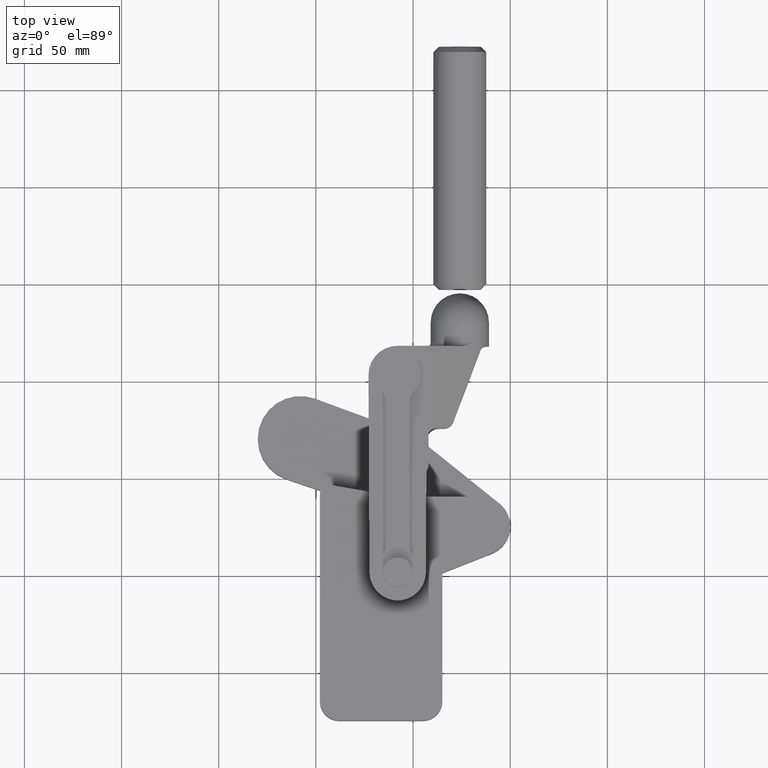
[diagram: clean part render]
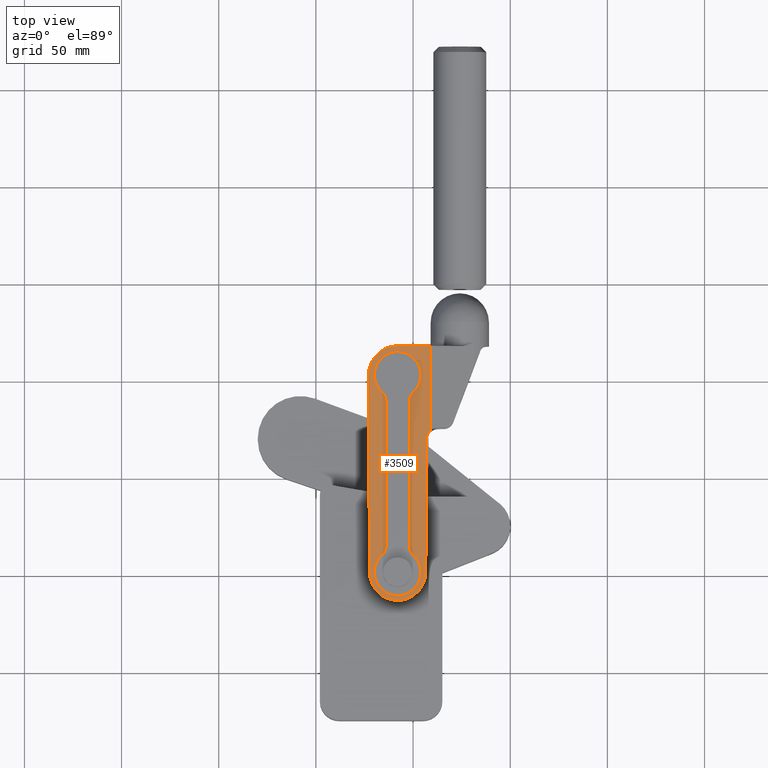
[diagram: same view with one face highlighted and labeled with its STEP entity id]
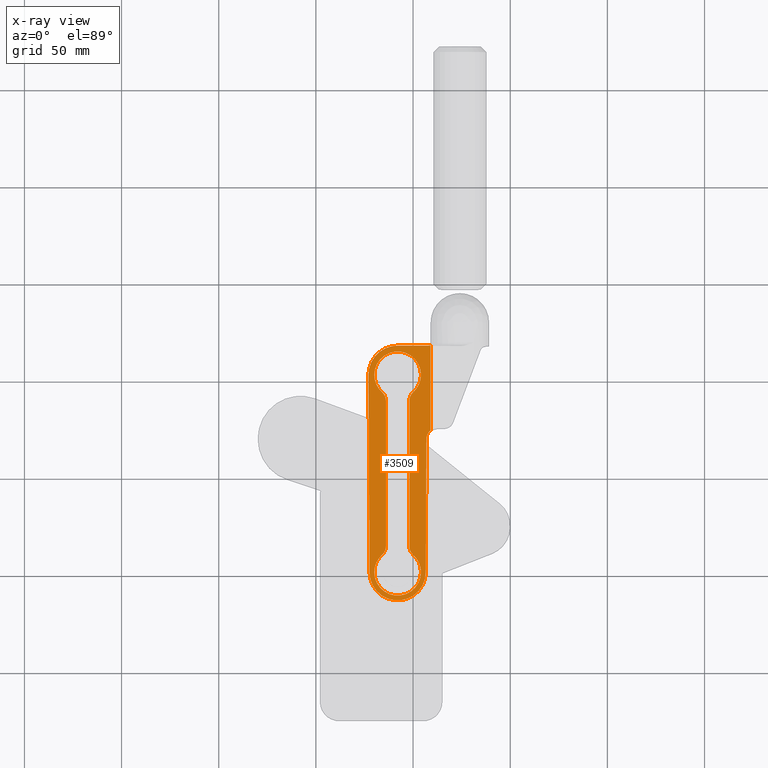
[diagram: x-ray of the same camera — body ghosted, the highlighted face saturated]
A machine part, top view. The second image highlights one B-rep face of the part: STEP entity #3509.
The next image is the same camera in x-ray: the body ghosted, the highlighted face saturated — about 0% of this face is hidden behind the body in this view.
In plain terms, the highlighted planar face has unit normal (-0, 0, 1).
Its self-contained STEP definition (entity closure, byte-faithful):
#85 = DIRECTION ( 'NONE',  ( 1.000000000000000000, 0.0000000000000000000, 0.0000000000000000000 ) ) ;
#99 = CARTESIAN_POINT ( 'NONE',  ( -149.9537911822583300, 59.89486728285307000, 24.90758373517278600 ) ) ;
#142 = LINE ( 'NONE', #1182, #282 ) ;
#207 = DIRECTION ( 'NONE',  ( 1.000000000000000000, 0.0000000000000000000, 0.0000000000000000000 ) ) ;
#233 = DIRECTION ( 'NONE',  ( -3.582142122470279100E-022, 3.234600765087460500E-022, 1.000000000000000000 ) ) ;
#282 = VECTOR ( 'NONE', #5583, 1000.000000000000200 ) ;
#292 = DIRECTION ( 'NONE',  ( 3.582142122470279100E-022, -3.234600765087460500E-022, -1.000000000000000000 ) ) ;
#343 = AXIS2_PLACEMENT_3D ( 'NONE', #1177, #4242, #1600 ) ;
#348 = EDGE_CURVE ( 'NONE', #3696, #1319, #2980, .T. ) ;
#350 = VERTEX_POINT ( 'NONE', #4590 ) ;
#359 = CARTESIAN_POINT ( 'NONE',  ( -157.9537911822583300, 50.95059537285391100, 24.90758373517278600 ) ) ;
#383 = DIRECTION ( 'NONE',  ( 3.582142122470279100E-022, -3.234600765087460500E-022, -1.000000000000000000 ) ) ;
#441 = DIRECTION ( 'NONE',  ( 0.004921259842521636500, 0.9999878905274614000, -3.216932943600802900E-022 ) ) ;
#487 = CIRCLE ( 'NONE', #3983, 5.999999999999950300 ) ;
#488 = DIRECTION ( 'NONE',  ( -3.582142122470279100E-022, 3.234600765087460500E-022, 1.000000000000000000 ) ) ;
#491 = EDGE_CURVE ( 'NONE', #1140, #2079, #2283, .T. ) ;
#529 = CIRCLE ( 'NONE', #3239, 14.99999999999957000 ) ;
#568 = CARTESIAN_POINT ( 'NONE',  ( -172.9536095401702500, 152.4767764752161600, 24.90758373517278600 ) ) ;
#587 = DIRECTION ( 'NONE',  ( 2.775557561562890700E-017, -1.000000000000000000, 3.234600765087459100E-022 ) ) ;
#637 = CARTESIAN_POINT ( 'NONE',  ( -157.9537911822583300, 50.95059537285391100, 24.90758373517278600 ) ) ;
#653 = CIRCLE ( 'NONE', #4520, 5.999999999999977800 ) ;
#664 = AXIS2_PLACEMENT_3D ( 'NONE', #4630, #5597, #1428 ) ;
#674 = AXIS2_PLACEMENT_3D ( 'NONE', #637, #3256, #207 ) ;
#676 = LINE ( 'NONE', #3437, #1694 ) ;
#684 = LINE ( 'NONE', #3645, #5076 ) ;
#723 = VERTEX_POINT ( 'NONE', #4704 ) ;
#758 = EDGE_CURVE ( 'NONE', #723, #5026, #4420, .T. ) ;
#791 = DIRECTION ( 'NONE',  ( 1.000000000000000000, 0.0000000000000000000, 0.0000000000000000000 ) ) ;
#834 = DIRECTION ( 'NONE',  ( 3.582142122470279100E-022, -3.234600765087460500E-022, -1.000000000000000000 ) ) ;
#852 = DIRECTION ( 'NONE',  ( 3.582142122470279100E-022, -3.234600765087460500E-022, -1.000000000000000000 ) ) ;
#894 = EDGE_CURVE ( 'NONE', #2380, #2794, #676, .T. ) ;
#912 = AXIS2_PLACEMENT_3D ( 'NONE', #359, #3413, #791 ) ;
#943 = DIRECTION ( 'NONE',  ( -3.582142122470279100E-022, 3.234600765087460500E-022, 1.000000000000000000 ) ) ;
#957 = CIRCLE ( 'NONE', #1808, 12.00000000000067700 ) ;
#1030 = VECTOR ( 'NONE', #5113, 1000.000000000000000 ) ;
#1140 = VERTEX_POINT ( 'NONE', #4535 ) ;
#1172 = CARTESIAN_POINT ( 'NONE',  ( -157.9537911822583300, 152.5505953728548400, 24.90758373517278600 ) ) ;
#1177 = CARTESIAN_POINT ( 'NONE',  ( -157.9537911822583300, 50.95059537285391100, 24.90758373517278600 ) ) ;
#1182 = CARTESIAN_POINT ( 'NONE',  ( -172.4536155949065200, 50.87923710513741300, 24.90758373517278600 ) ) ;
#1244 = EDGE_CURVE ( 'NONE', #2079, #5122, #2927, .T. ) ;
#1319 = VERTEX_POINT ( 'NONE', #3230 ) ;
#1372 = CARTESIAN_POINT ( 'NONE',  ( -151.9537911822583300, 139.1341875078551900, 24.90758373517278600 ) ) ;
#1375 = CARTESIAN_POINT ( 'NONE',  ( -157.9537911822583300, 152.5505953728548400, 24.90758373517278600 ) ) ;
#1379 = CARTESIAN_POINT ( 'NONE',  ( -151.9537911822583300, 64.36700323785265700, 24.90758373517278600 ) ) ;
#1382 = ORIENTED_EDGE ( 'NONE', *, *, #2121, .F. ) ;
#1411 = DIRECTION ( 'NONE',  ( 1.000000000000000000, 0.0000000000000000000, 0.0000000000000000000 ) ) ;
#1428 = DIRECTION ( 'NONE',  ( 1.000000000000000000, 0.0000000000000000000, 0.0000000000000000000 ) ) ;
#1470 = ORIENTED_EDGE ( 'NONE', *, *, #2869, .F. ) ;
#1528 = ORIENTED_EDGE ( 'NONE', *, *, #348, .T. ) ;
#1586 = CARTESIAN_POINT ( 'NONE',  ( -143.1163598967882800, 119.4801229319091500, 24.90758373517278600 ) ) ;
#1600 = DIRECTION ( 'NONE',  ( 1.000000000000000000, 0.0000000000000000000, 0.0000000000000000000 ) ) ;
#1617 = CARTESIAN_POINT ( 'NONE',  ( -163.9537911822583300, 64.36700323785265700, 24.90758373517278600 ) ) ;
#1624 = VERTEX_POINT ( 'NONE', #3791 ) ;
#1664 = ORIENTED_EDGE ( 'NONE', *, *, #1244, .F. ) ;
#1675 = DIRECTION ( 'NONE',  ( 1.000000000000000000, 2.775557561562890700E-017, 3.582142122470277200E-022 ) ) ;
#1682 = VERTEX_POINT ( 'NONE', #3739 ) ;
#1694 = VECTOR ( 'NONE', #5197, 1000.000000000000000 ) ;
#1695 = EDGE_CURVE ( 'NONE', #2543, #1624, #5128, .T. ) ;
#1712 = CIRCLE ( 'NONE', #4948, 6.000000000000005300 ) ;
#1735 = CARTESIAN_POINT ( 'NONE',  ( -163.9537911822583300, 139.1341875078551900, 24.90758373517278600 ) ) ;
#1790 = EDGE_LOOP ( 'NONE', ( #2948, #1979, #5555, #4200, #5273, #2500, #1528, #3758 ) ) ;
#1792 = LINE ( 'NONE', #2187, #4139 ) ;
#1808 = AXIS2_PLACEMENT_3D ( 'NONE', #5354, #2693, #85 ) ;
#1810 = CARTESIAN_POINT ( 'NONE',  ( -169.9537911822590100, 152.5505953728548400, 24.90758373517278600 ) ) ;
#1927 = EDGE_CURVE ( 'NONE', #2794, #1624, #529, .T. ) ;
#1948 = ORIENTED_EDGE ( 'NONE', *, *, #4264, .F. ) ;
#1979 = ORIENTED_EDGE ( 'NONE', *, *, #4640, .F. ) ;
#2043 = CARTESIAN_POINT ( 'NONE',  ( -151.9537911822583300, 139.1341875078551900, 24.90758373517278600 ) ) ;
#2079 = VERTEX_POINT ( 'NONE', #3708 ) ;
#2121 = EDGE_CURVE ( 'NONE', #3093, #1140, #5263, .T. ) ;
#2187 = CARTESIAN_POINT ( 'NONE',  ( -143.4539667696101300, 50.87923710513741300, 24.90758373517278600 ) ) ;
#2200 = CARTESIAN_POINT ( 'NONE',  ( -172.4536155949065200, 50.87923710513741300, 24.90758373517278600 ) ) ;
#2283 = CIRCLE ( 'NONE', #4481, 12.00000000000067700 ) ;
#2380 = VERTEX_POINT ( 'NONE', #5140 ) ;
#2469 = DIRECTION ( 'NONE',  ( -2.775557561562890700E-017, 1.000000000000000000, -3.234600765087459100E-022 ) ) ;
#2500 = ORIENTED_EDGE ( 'NONE', *, *, #5464, .T. ) ;
#2543 = VERTEX_POINT ( 'NONE', #568 ) ;
#2586 = DIRECTION ( 'NONE',  ( 1.000000000000000000, 0.0000000000000000000, 0.0000000000000000000 ) ) ;
#2693 = DIRECTION ( 'NONE',  ( -3.582142122470279100E-022, 3.234600765087460500E-022, 1.000000000000000000 ) ) ;
#2754 = VERTEX_POINT ( 'NONE', #1586 ) ;
#2785 = EDGE_CURVE ( 'NONE', #350, #3126, #3804, .T. ) ;
#2794 = VERTEX_POINT ( 'NONE', #4680 ) ;
#2834 = VECTOR ( 'NONE', #3884, 1000.000000000000000 ) ;
#2869 = EDGE_CURVE ( 'NONE', #4184, #350, #3394, .T. ) ;
#2927 = CIRCLE ( 'NONE', #2977, 12.00000000000067700 ) ;
#2948 = ORIENTED_EDGE ( 'NONE', *, *, #3511, .T. ) ;
#2970 = FACE_OUTER_BOUND ( 'NONE', #1790, .T. ) ;
#2974 = CARTESIAN_POINT ( 'NONE',  ( -102.9536095401702500, 167.5505953728539600, 24.90758373517278600 ) ) ;
#2977 = AXIS2_PLACEMENT_3D ( 'NONE', #1172, #233, #1411 ) ;
#2980 = CIRCLE ( 'NONE', #674, 14.50000000000001200 ) ;
#2996 = CARTESIAN_POINT ( 'NONE',  ( -137.1164325536235500, 119.4505953728540400, 24.90758373517278600 ) ) ;
#3089 = CARTESIAN_POINT ( 'NONE',  ( -157.9537911822583300, 50.95059537285391100, 24.90758373517278600 ) ) ;
#3093 = VERTEX_POINT ( 'NONE', #1372 ) ;
#3116 = VERTEX_POINT ( 'NONE', #4021 ) ;
#3126 = VERTEX_POINT ( 'NONE', #99 ) ;
#3198 = ORIENTED_EDGE ( 'NONE', *, *, #758, .F. ) ;
#3230 = CARTESIAN_POINT ( 'NONE',  ( -143.4539667696101300, 50.87923710513741300, 24.90758373517278600 ) ) ;
#3239 = AXIS2_PLACEMENT_3D ( 'NONE', #5234, #5595, #2586 ) ;
#3256 = DIRECTION ( 'NONE',  ( -3.582142122470279100E-022, 3.234600765087460500E-022, 1.000000000000000000 ) ) ;
#3346 = CARTESIAN_POINT ( 'NONE',  ( -169.9537911822582700, 139.1341875078551900, 24.90758373517278600 ) ) ;
#3394 = CIRCLE ( 'NONE', #912, 12.00000000000001100 ) ;
#3413 = DIRECTION ( 'NONE',  ( -3.582142122470279100E-022, 3.234600765087460500E-022, 1.000000000000000000 ) ) ;
#3437 = CARTESIAN_POINT ( 'NONE',  ( -102.9536095401702500, 167.5505953728539600, 24.90758373517278600 ) ) ;
#3438 = DIRECTION ( 'NONE',  ( 1.000000000000000000, 0.0000000000000000000, 0.0000000000000000000 ) ) ;
#3443 = CARTESIAN_POINT ( 'NONE',  ( -145.9537911822583300, 64.36700323785265700, 24.90758373517278600 ) ) ;
#3474 = CARTESIAN_POINT ( 'NONE',  ( -169.9537911822582700, 64.36700323785265700, 24.90758373517278600 ) ) ;
#3497 = AXIS2_PLACEMENT_3D ( 'NONE', #3346, #292, #3774 ) ;
#3509 = ADVANCED_FACE ( 'NONE', ( #4283, #2970 ), #5632, .T. ) ;
#3511 = EDGE_CURVE ( 'NONE', #2754, #3116, #653, .T. ) ;
#3531 = EDGE_CURVE ( 'NONE', #5026, #4306, #4004, .T. ) ;
#3536 = DIRECTION ( 'NONE',  ( 1.000000000000000000, 0.0000000000000000000, 0.0000000000000000000 ) ) ;
#3564 = DIRECTION ( 'NONE',  ( 1.000000000000000000, 0.0000000000000000000, 0.0000000000000000000 ) ) ;
#3645 = CARTESIAN_POINT ( 'NONE',  ( -140.9536095401702500, 199.5505953728539600, 24.90758373517275700 ) ) ;
#3696 = VERTEX_POINT ( 'NONE', #2200 ) ;
#3708 = CARTESIAN_POINT ( 'NONE',  ( -145.9537911822576500, 152.5505953728548400, 24.90758373517278600 ) ) ;
#3734 = VERTEX_POINT ( 'NONE', #1379 ) ;
#3739 = CARTESIAN_POINT ( 'NONE',  ( -165.9537911822583300, 59.89486728285307000, 24.90758373517278600 ) ) ;
#3758 = ORIENTED_EDGE ( 'NONE', *, *, #3898, .T. ) ;
#3774 = DIRECTION ( 'NONE',  ( 1.000000000000000000, 0.0000000000000000000, 0.0000000000000000000 ) ) ;
#3791 = CARTESIAN_POINT ( 'NONE',  ( -172.9536095401702500, 152.6244142704006500, 24.90758373517278600 ) ) ;
#3804 = CIRCLE ( 'NONE', #343, 12.00000000000001100 ) ;
#3859 = CIRCLE ( 'NONE', #3918, 12.00000000000001100 ) ;
#3884 = DIRECTION ( 'NONE',  ( -4.184943196546297800E-017, -1.000000000000000000, 3.234600765087458600E-022 ) ) ;
#3897 = DIRECTION ( 'NONE',  ( 1.000000000000000000, 0.0000000000000000000, 0.0000000000000000000 ) ) ;
#3898 = EDGE_CURVE ( 'NONE', #1319, #2754, #1792, .T. ) ;
#3899 = ORIENTED_EDGE ( 'NONE', *, *, #491, .F. ) ;
#3918 = AXIS2_PLACEMENT_3D ( 'NONE', #3089, #488, #3536 ) ;
#3920 = DIRECTION ( 'NONE',  ( 1.000000000000000000, 0.0000000000000000000, 0.0000000000000000000 ) ) ;
#3921 = EDGE_CURVE ( 'NONE', #1682, #4184, #3859, .T. ) ;
#3983 = AXIS2_PLACEMENT_3D ( 'NONE', #3474, #852, #3920 ) ;
#4004 = LINE ( 'NONE', #4743, #2834 ) ;
#4021 = CARTESIAN_POINT ( 'NONE',  ( -140.9536095401702500, 124.0631947239700700, 24.90758373517275700 ) ) ;
#4139 = VECTOR ( 'NONE', #441, 1000.000000000000200 ) ;
#4184 = VERTEX_POINT ( 'NONE', #5062 ) ;
#4200 = ORIENTED_EDGE ( 'NONE', *, *, #1927, .T. ) ;
#4242 = DIRECTION ( 'NONE',  ( -3.582142122470279100E-022, 3.234600765087460500E-022, 1.000000000000000000 ) ) ;
#4264 = EDGE_CURVE ( 'NONE', #3734, #3093, #4525, .T. ) ;
#4283 = FACE_BOUND ( 'NONE', #5538, .T. ) ;
#4306 = VERTEX_POINT ( 'NONE', #1617 ) ;
#4310 = DIRECTION ( 'NONE',  ( -3.582142122470277200E-022, 3.234600765087460500E-022, 1.000000000000000000 ) ) ;
#4336 = ORIENTED_EDGE ( 'NONE', *, *, #3531, .F. ) ;
#4398 = EDGE_CURVE ( 'NONE', #4306, #1682, #487, .T. ) ;
#4420 = CIRCLE ( 'NONE', #3497, 5.999999999999977800 ) ;
#4481 = AXIS2_PLACEMENT_3D ( 'NONE', #1375, #943, #3564 ) ;
#4520 = AXIS2_PLACEMENT_3D ( 'NONE', #2996, #383, #3438 ) ;
#4525 = LINE ( 'NONE', #2043, #1030 ) ;
#4533 = EDGE_CURVE ( 'NONE', #5122, #723, #957, .T. ) ;
#4535 = CARTESIAN_POINT ( 'NONE',  ( -149.9537911822583300, 143.6063234628547600, 24.90758373517278600 ) ) ;
#4590 = CARTESIAN_POINT ( 'NONE',  ( -145.9537911822583300, 50.95059537285391100, 24.90758373517278600 ) ) ;
#4630 = CARTESIAN_POINT ( 'NONE',  ( -145.9537911822583300, 139.1341875078551900, 24.90758373517278600 ) ) ;
#4640 = EDGE_CURVE ( 'NONE', #2380, #3116, #684, .T. ) ;
#4680 = CARTESIAN_POINT ( 'NONE',  ( -157.9537911822583300, 167.5505953728539600, 24.90758373517278600 ) ) ;
#4704 = CARTESIAN_POINT ( 'NONE',  ( -165.9537911822583600, 143.6063234628547900, 24.90758373517278600 ) ) ;
#4743 = CARTESIAN_POINT ( 'NONE',  ( -163.9537911822583300, 139.1341875078551900, 24.90758373517278600 ) ) ;
#4812 = AXIS2_PLACEMENT_3D ( 'NONE', #2974, #4310, #1675 ) ;
#4932 = EDGE_CURVE ( 'NONE', #3126, #3734, #1712, .T. ) ;
#4948 = AXIS2_PLACEMENT_3D ( 'NONE', #3443, #834, #3897 ) ;
#4961 = ORIENTED_EDGE ( 'NONE', *, *, #2785, .F. ) ;
#4992 = ORIENTED_EDGE ( 'NONE', *, *, #4533, .F. ) ;
#5026 = VERTEX_POINT ( 'NONE', #1735 ) ;
#5062 = CARTESIAN_POINT ( 'NONE',  ( -169.9537911822583300, 50.95059537285391100, 24.90758373517278600 ) ) ;
#5076 = VECTOR ( 'NONE', #587, 1000.000000000000000 ) ;
#5113 = DIRECTION ( 'NONE',  ( 6.505110115916029100E-017, 1.000000000000000000, -3.234600765087458600E-022 ) ) ;
#5122 = VERTEX_POINT ( 'NONE', #1810 ) ;
#5128 = LINE ( 'NONE', #5183, #5270 ) ;
#5140 = CARTESIAN_POINT ( 'NONE',  ( -140.9536095401702500, 167.5505953728544200, 24.90758373517275700 ) ) ;
#5183 = CARTESIAN_POINT ( 'NONE',  ( -172.9536095401702500, 167.5505953728539600, 24.90758373517278600 ) ) ;
#5197 = DIRECTION ( 'NONE',  ( -1.000000000000000000, -2.775557561562890700E-017, -3.582142122470277200E-022 ) ) ;
#5234 = CARTESIAN_POINT ( 'NONE',  ( -157.9537911822583300, 152.5505953728548400, 24.90758373517278600 ) ) ;
#5263 = CIRCLE ( 'NONE', #664, 6.000000000000005300 ) ;
#5270 = VECTOR ( 'NONE', #2469, 1000.000000000000000 ) ;
#5273 = ORIENTED_EDGE ( 'NONE', *, *, #1695, .F. ) ;
#5354 = CARTESIAN_POINT ( 'NONE',  ( -157.9537911822583300, 152.5505953728548400, 24.90758373517278600 ) ) ;
#5464 = EDGE_CURVE ( 'NONE', #2543, #3696, #142, .T. ) ;
#5508 = ORIENTED_EDGE ( 'NONE', *, *, #3921, .F. ) ;
#5538 = EDGE_LOOP ( 'NONE', ( #5508, #5690, #4336, #3198, #4992, #1664, #3899, #1382, #1948, #5638, #4961, #1470 ) ) ;
#5555 = ORIENTED_EDGE ( 'NONE', *, *, #894, .T. ) ;
#5583 = DIRECTION ( 'NONE',  ( 0.004921259842519730100, -0.9999878905274614000, 3.252190247955832600E-022 ) ) ;
#5595 = DIRECTION ( 'NONE',  ( -3.582142122470279100E-022, 3.234600765087460500E-022, 1.000000000000000000 ) ) ;
#5597 = DIRECTION ( 'NONE',  ( 3.582142122470279100E-022, -3.234600765087460500E-022, -1.000000000000000000 ) ) ;
#5632 = PLANE ( 'NONE',  #4812 ) ;
#5638 = ORIENTED_EDGE ( 'NONE', *, *, #4932, .F. ) ;
#5690 = ORIENTED_EDGE ( 'NONE', *, *, #4398, .F. ) ;